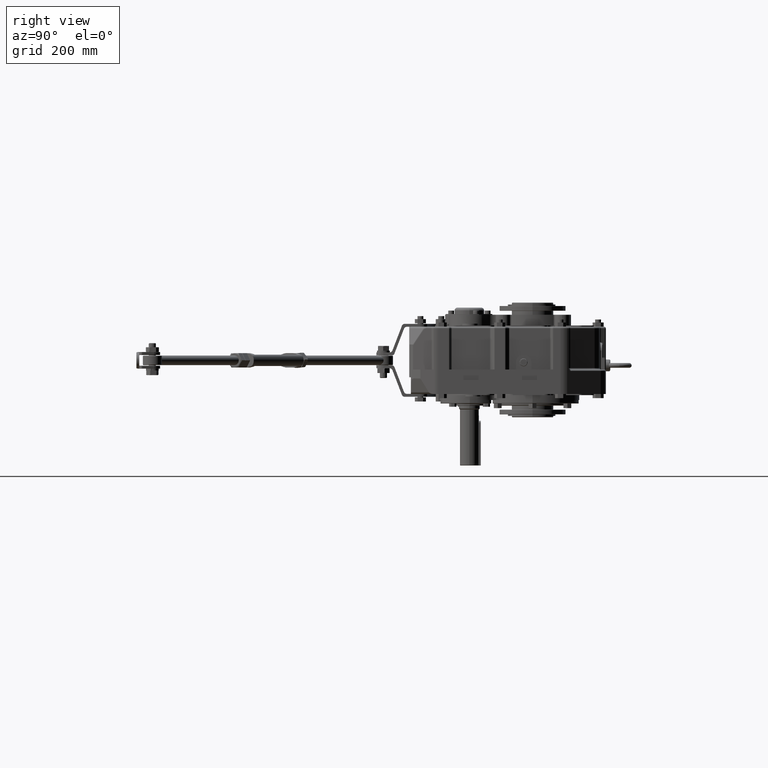
[diagram: clean part render]
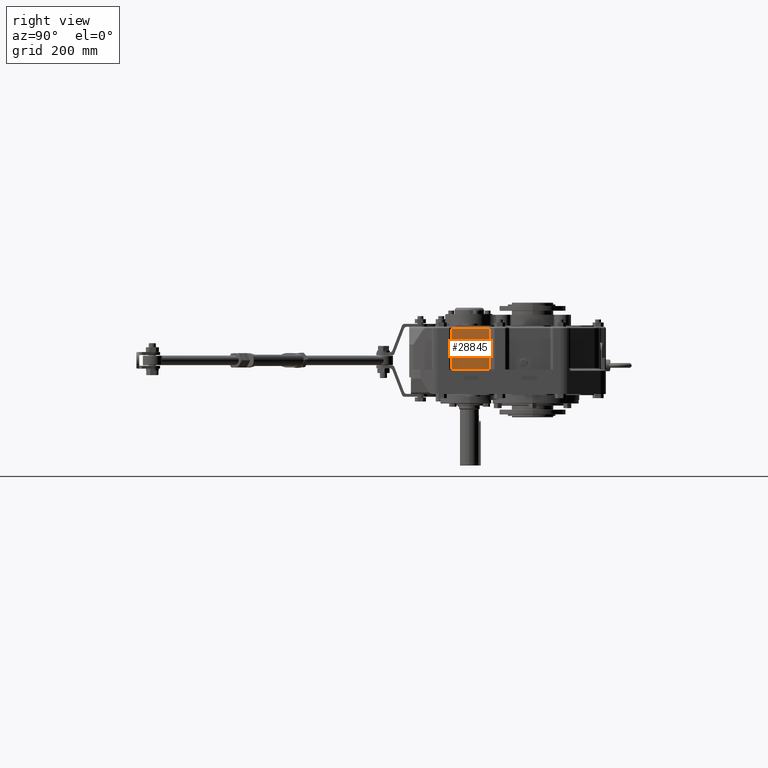
[diagram: same view with one face highlighted and labeled with its STEP entity id]
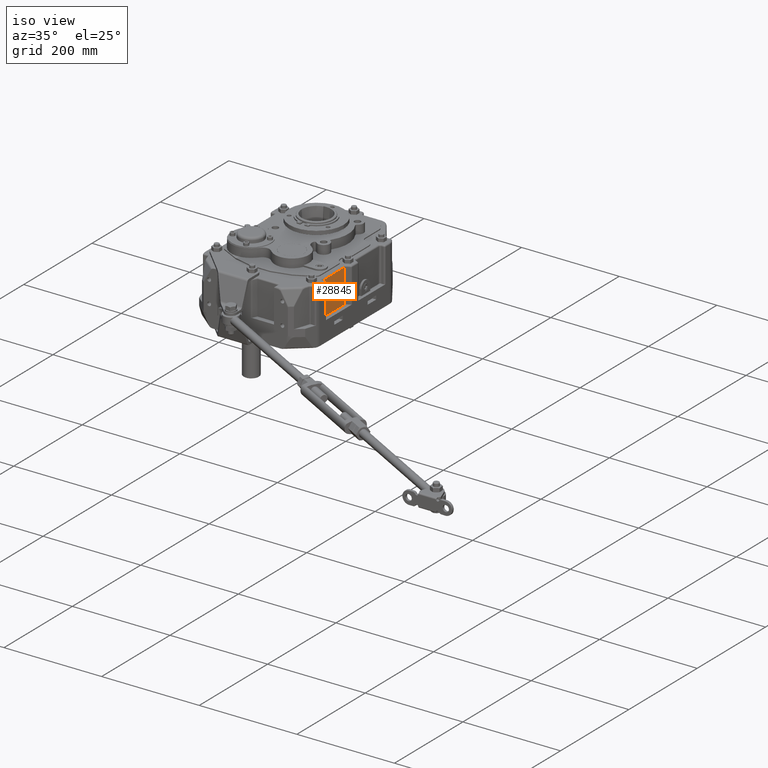
[diagram: same view with one face highlighted and labeled with its STEP entity id]
A machine part, right view. The second image highlights one B-rep face of the part: STEP entity #28845.
A second angle (iso view) of the same face is appended — the face is thin or edge-on in the first view.
In plain terms, the highlighted planar face has unit normal (-1, -0, 0).
Its self-contained STEP definition (entity closure, byte-faithful):
#4540 = EDGE_CURVE ( 'NONE', #18246, #47004, #14778, .T. ) ;
#5942 = ORIENTED_EDGE ( 'NONE', *, *, #56642, .T. ) ;
#9250 = LINE ( 'NONE', #18852, #42799 ) ;
#10477 = ORIENTED_EDGE ( 'NONE', *, *, #10762, .T. ) ;
#10762 = EDGE_CURVE ( 'NONE', #18246, #39531, #9250, .T. ) ;
#13376 = EDGE_LOOP ( 'NONE', ( #10477, #5942, #49509, #34254 ) ) ;
#14080 = DIRECTION ( 'NONE',  ( 1.682156097916904300E-016, -1.000000000000000000, 0.0000000000000000000 ) ) ;
#14474 = DIRECTION ( 'NONE',  ( -0.0000000000000000000, -0.0000000000000000000, -1.000000000000000000 ) ) ;
#14778 = LINE ( 'NONE', #19366, #24986 ) ;
#18246 = VERTEX_POINT ( 'NONE', #35478 ) ;
#18255 = CARTESIAN_POINT ( 'NONE',  ( 4.232283464566929600, 4.842519685039370400, -12.48627875529069300 ) ) ;
#18852 = CARTESIAN_POINT ( 'NONE',  ( 4.232283464566930500, -2.828901285540331000, 3.346456692913386500 ) ) ;
#19229 = LINE ( 'NONE', #40678, #32205 ) ;
#19366 = CARTESIAN_POINT ( 'NONE',  ( 4.232283464566929600, 4.842519685039370400, 0.5118110236220476700 ) ) ;
#23519 = DIRECTION ( 'NONE',  ( 1.682156097916904300E-016, -1.000000000000000000, 0.0000000000000000000 ) ) ;
#24986 = VECTOR ( 'NONE', #23519, 39.37007874015748100 ) ;
#27426 = DIRECTION ( 'NONE',  ( 0.0000000000000000000, 0.0000000000000000000, 1.000000000000000000 ) ) ;
#28301 = FACE_OUTER_BOUND ( 'NONE', #13376, .T. ) ;
#28845 = ADVANCED_FACE ( 'NONE', ( #28301 ), #35876, .F. ) ;
#29480 = CARTESIAN_POINT ( 'NONE',  ( 4.232283464566930500, -2.828901285540331000, 3.228346456692914300 ) ) ;
#32205 = VECTOR ( 'NONE', #14474, 39.37007874015748100 ) ;
#32847 = CARTESIAN_POINT ( 'NONE',  ( 4.232283464566931400, -5.314960629921260200, 3.228346456692914300 ) ) ;
#34254 = ORIENTED_EDGE ( 'NONE', *, *, #4540, .F. ) ;
#35478 = CARTESIAN_POINT ( 'NONE',  ( 4.232283464566930500, -2.828901285540331000, 0.5118110236220476700 ) ) ;
#35876 = PLANE ( 'NONE',  #54887 ) ;
#39048 = LINE ( 'NONE', #39694, #49286 ) ;
#39531 = VERTEX_POINT ( 'NONE', #29480 ) ;
#39694 = CARTESIAN_POINT ( 'NONE',  ( 4.232283464566931400, -5.314960629921260200, 3.228346456692914300 ) ) ;
#40293 = DIRECTION ( 'NONE',  ( -1.000000000000000000, -1.682156097916904300E-016, 0.0000000000000000000 ) ) ;
#40678 = CARTESIAN_POINT ( 'NONE',  ( 4.232283464566931400, -5.314960629921260200, 0.5118110236220476700 ) ) ;
#42799 = VECTOR ( 'NONE', #27426, 39.37007874015748100 ) ;
#44074 = DIRECTION ( 'NONE',  ( 1.682156097916904300E-016, -1.000000000000000000, 0.0000000000000000000 ) ) ;
#47004 = VERTEX_POINT ( 'NONE', #52457 ) ;
#49286 = VECTOR ( 'NONE', #44074, 39.37007874015748100 ) ;
#49509 = ORIENTED_EDGE ( 'NONE', *, *, #56191, .T. ) ;
#52457 = CARTESIAN_POINT ( 'NONE',  ( 4.232283464566931400, -5.314960629921260200, 0.5118110236220476700 ) ) ;
#53488 = VERTEX_POINT ( 'NONE', #32847 ) ;
#54887 = AXIS2_PLACEMENT_3D ( 'NONE', #18255, #40293, #14080 ) ;
#56191 = EDGE_CURVE ( 'NONE', #53488, #47004, #19229, .T. ) ;
#56642 = EDGE_CURVE ( 'NONE', #39531, #53488, #39048, .T. ) ;